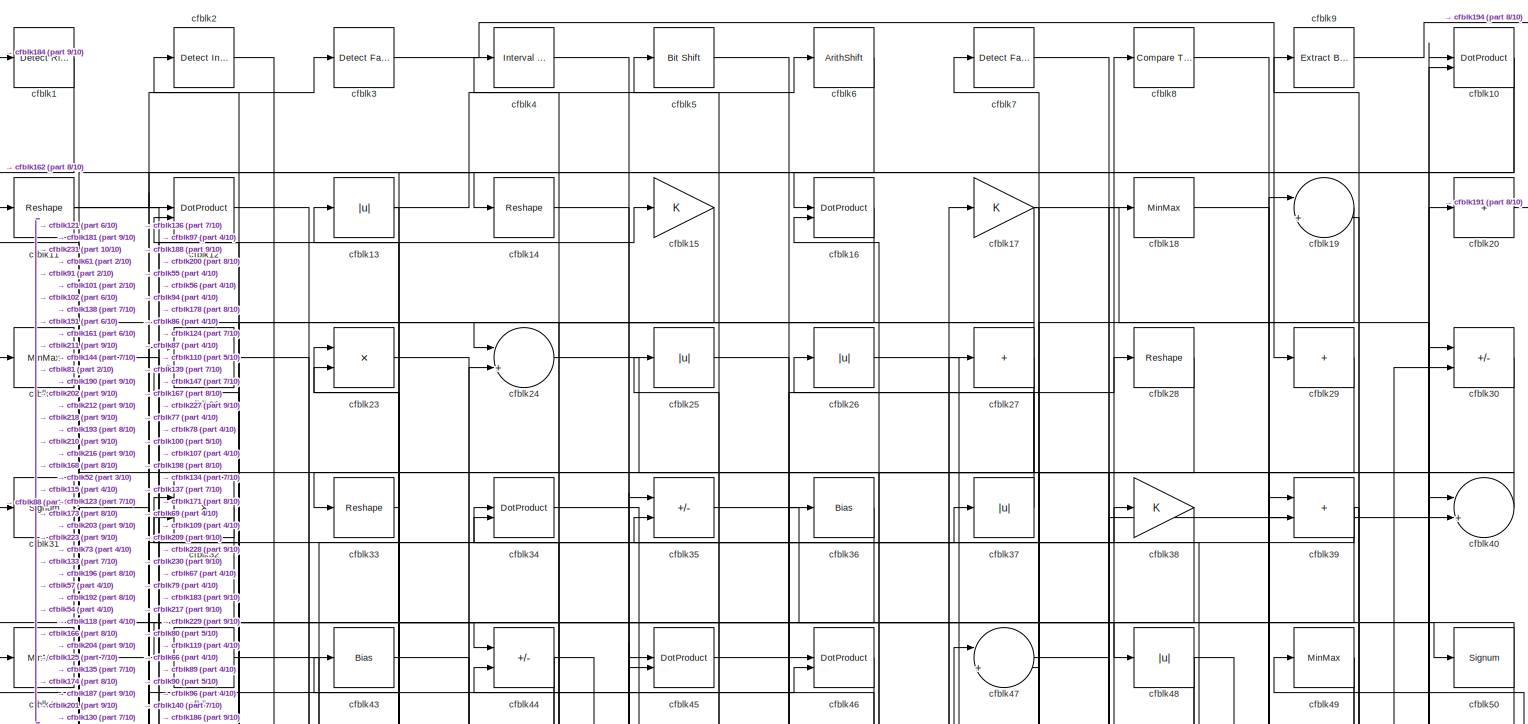
[diagram: root canvas - part 1/10, full width, top band]
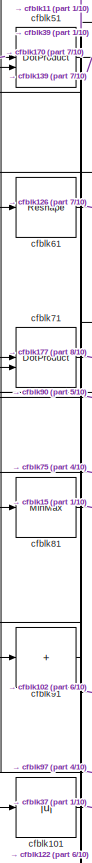
[diagram: root canvas - part 2/10, middle left region]
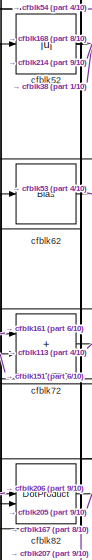
[diagram: root canvas - part 3/10, top left region]
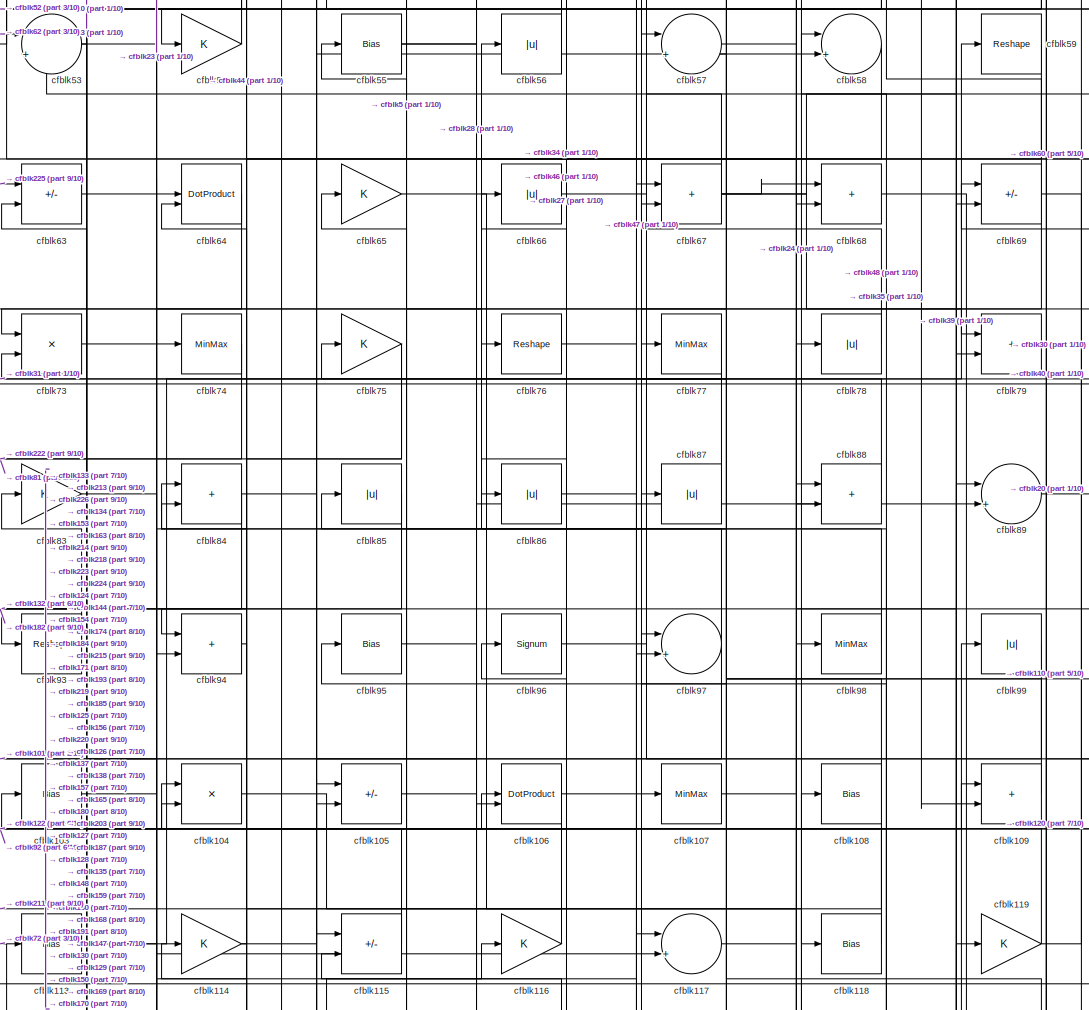
[diagram: root canvas - part 4/10, central region]
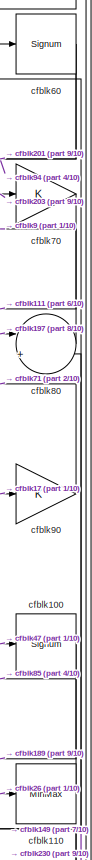
[diagram: root canvas - part 5/10, middle right region]
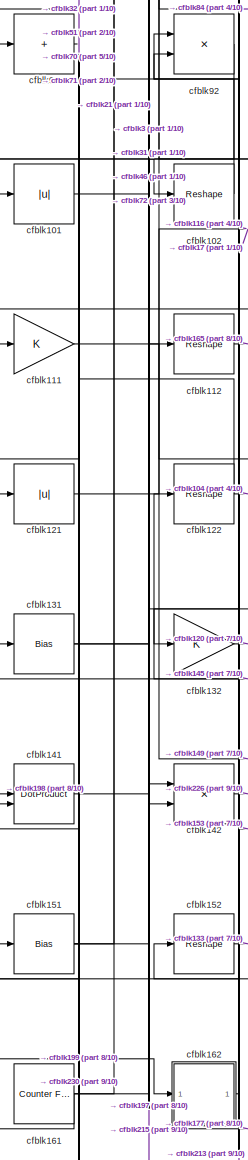
[diagram: root canvas - part 6/10, middle left region]
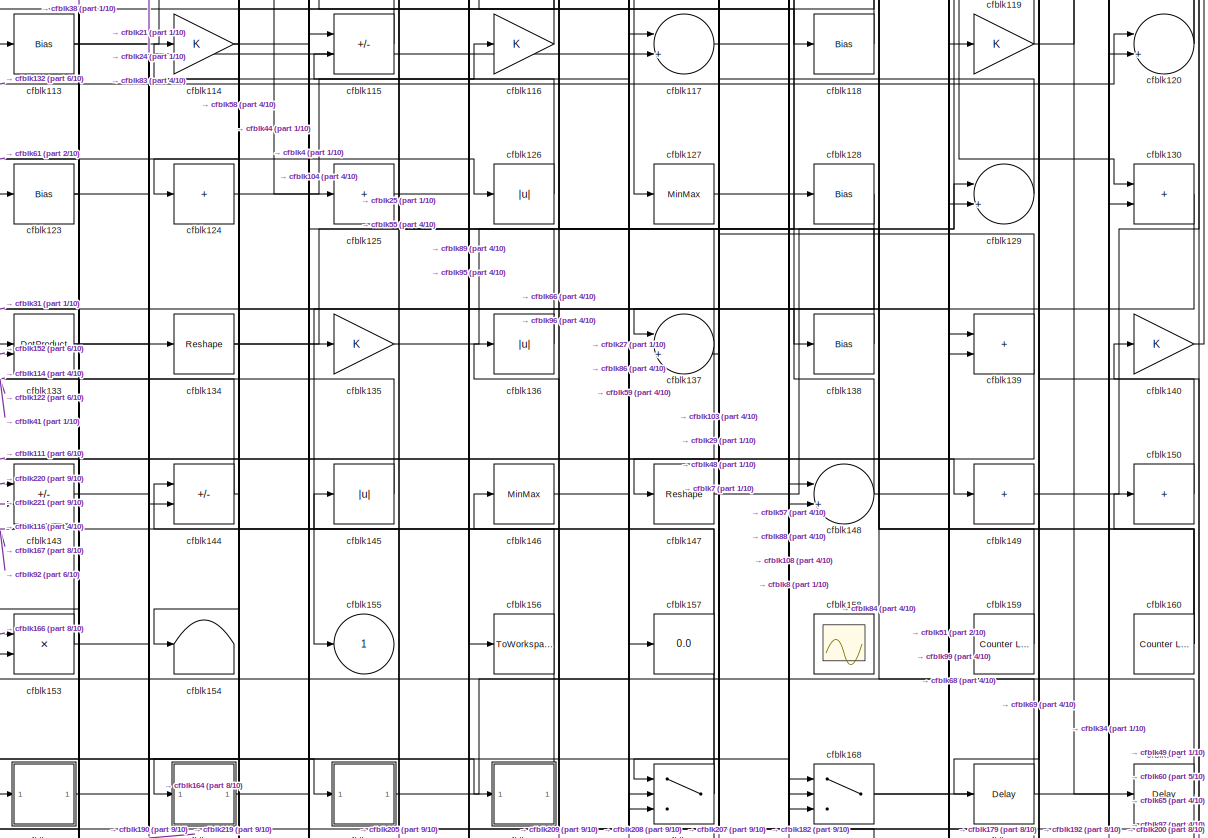
[diagram: root canvas - part 7/10, full width, middle band]
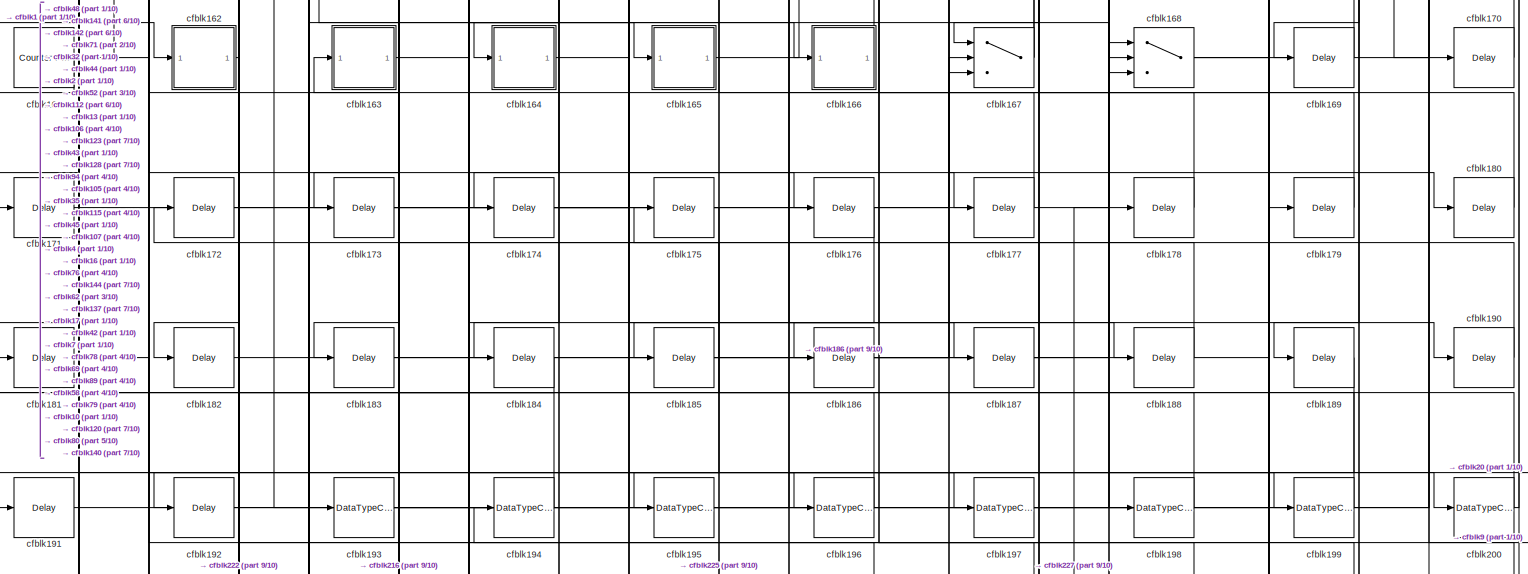
[diagram: root canvas - part 8/10, full width, bottom band]
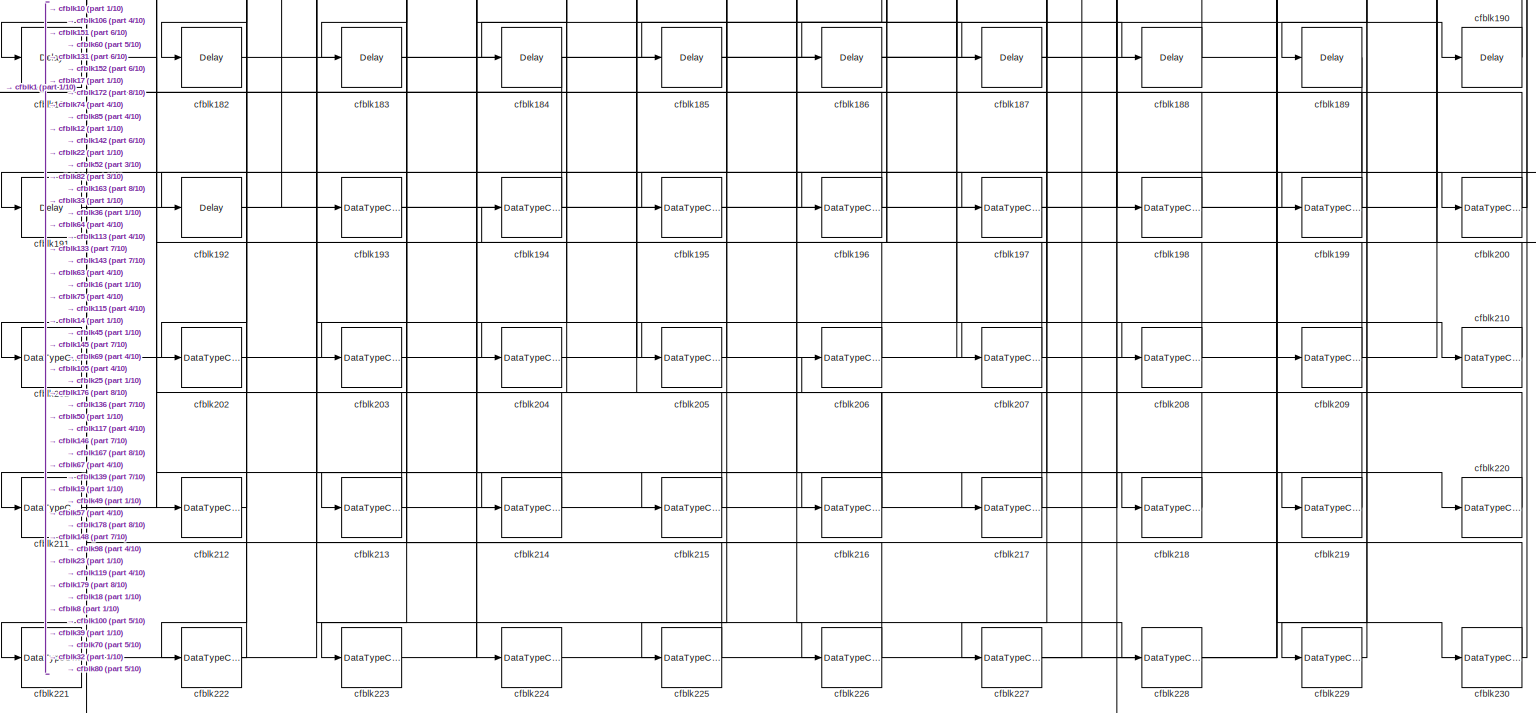
[diagram: root canvas - part 9/10, full width, bottom band]
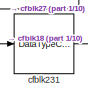
[diagram: root canvas - part 10/10, bottom left region]
MODEL slx_b0f15232308f
KIND model
CONFIG AbsTol = auto
CONFIG EnableMultiTasking = off
CONFIG FixedStep = auto
CONFIG MaxStep = auto
CONFIG MinStep = auto
CONFIG RelTol = 1e-3
CONFIG SampleTimeConstraint = Unconstrained
CONFIG SolverName = VariableStepAuto
CONFIG StartTime = 0.0
CONFIG StopTime = 10.0
BLOCK [Reference] cfblk1  REF=hdlsllib/Logic and Bit
Operations/Detect Rise
Positive
  SourceBlock = hdlsllib/Logic and Bit\nOperations/Detect Rise\nPositive
  SourceType = Detect Rise Positive
BLOCK [DotProduct] cfblk10
  OutDataTypeStr = Inherit: Inherit via internal rule
BLOCK [Signum] cfblk100
BLOCK [Abs] cfblk101
  SaturateOnIntegerOverflow = off
BLOCK [Reshape] cfblk102
BLOCK [Bias] cfblk103
  Bias = 0.0
  SaturateOnIntegerOverflow = off
BLOCK [Product] cfblk104
  Inputs = */
  RndMeth = Zero
  SaturateOnIntegerOverflow = on
BLOCK [Sum] cfblk105
  IconShape = rectangular
  Inputs = +-
BLOCK [DotProduct] cfblk106
  OutDataTypeStr = Inherit: Inherit via internal rule
BLOCK [MinMax] cfblk107
BLOCK [Bias] cfblk108
  Bias = 0.0
  SaturateOnIntegerOverflow = off
BLOCK [Sum] cfblk109
  IconShape = rectangular
BLOCK [Reshape] cfblk11
BLOCK [MinMax] cfblk110
BLOCK [Gain] cfblk111
BLOCK [Reshape] cfblk112
BLOCK [Bias] cfblk113
  Bias = 0.0
  SaturateOnIntegerOverflow = off
BLOCK [Gain] cfblk114
BLOCK [Sum] cfblk115
  IconShape = rectangular
  Inputs = +-
BLOCK [Gain] cfblk116
BLOCK [Sum] cfblk117
  Inputs = |++
BLOCK [Bias] cfblk118
  Bias = 0.0
  SaturateOnIntegerOverflow = off
BLOCK [Gain] cfblk119
BLOCK [DotProduct] cfblk12
  OutDataTypeStr = Inherit: Inherit via internal rule
BLOCK [Sum] cfblk120
  Inputs = |++
BLOCK [Abs] cfblk121
  SaturateOnIntegerOverflow = off
BLOCK [Reshape] cfblk122
BLOCK [Bias] cfblk123
  Bias = 0.0
  SaturateOnIntegerOverflow = off
BLOCK [Sum] cfblk124
  IconShape = rectangular
  Inputs = +
BLOCK [Sum] cfblk125
  IconShape = rectangular
  Inputs = +
BLOCK [Abs] cfblk126
  SaturateOnIntegerOverflow = off
BLOCK [MinMax] cfblk127
BLOCK [Bias] cfblk128
  Bias = 0.0
  SaturateOnIntegerOverflow = off
BLOCK [Sum] cfblk129
  Inputs = |++
BLOCK [Abs] cfblk13
  SaturateOnIntegerOverflow = off
BLOCK [Sum] cfblk130
  IconShape = rectangular
BLOCK [Bias] cfblk131
  Bias = 0.0
  SaturateOnIntegerOverflow = off
BLOCK [Gain] cfblk132
BLOCK [DotProduct] cfblk133
  OutDataTypeStr = Inherit: Inherit via internal rule
BLOCK [Reshape] cfblk134
BLOCK [Gain] cfblk135
BLOCK [Abs] cfblk136
  SaturateOnIntegerOverflow = off
BLOCK [Sum] cfblk137
  Inputs = |++
BLOCK [Bias] cfblk138
  Bias = 0.0
  SaturateOnIntegerOverflow = off
BLOCK [Sum] cfblk139
  IconShape = rectangular
BLOCK [Reshape] cfblk14
BLOCK [Gain] cfblk140
BLOCK [DotProduct] cfblk141
  OutDataTypeStr = Inherit: Inherit via internal rule
BLOCK [Product] cfblk142
  Inputs = */
  RndMeth = Zero
  SaturateOnIntegerOverflow = on
BLOCK [Sum] cfblk143
  IconShape = rectangular
  Inputs = +-
BLOCK [Sum] cfblk144
  IconShape = rectangular
  Inputs = +-
BLOCK [Abs] cfblk145
  SaturateOnIntegerOverflow = off
BLOCK [MinMax] cfblk146
BLOCK [Reshape] cfblk147
BLOCK [Sum] cfblk148
  Inputs = |++
BLOCK [Sum] cfblk149
  IconShape = rectangular
  Inputs = +
BLOCK [Gain] cfblk15
BLOCK [Sum] cfblk150
  IconShape = rectangular
  Inputs = +
BLOCK [Bias] cfblk151
  Bias = 0.0
  SaturateOnIntegerOverflow = off
BLOCK [Reshape] cfblk152
BLOCK [Product] cfblk153
  Inputs = */
  RndMeth = Zero
  SaturateOnIntegerOverflow = on
BLOCK [Terminator] cfblk154
BLOCK [Outport] cfblk155
  VectorParamsAs1DForOutWhenUnconnected = off
BLOCK [ToWorkspace] cfblk156
  MaxDataPoints = inf
  SampleTime = -1
  SaveFormat = Timeseries
  VariableName = simout
BLOCK [Display] cfblk157
  Decimation = 1
BLOCK [Scope] cfblk158
  Floating = on
  NumInputPorts = 1
  ScopeSpecificationString = Simulink.scopes.TimeScopeBlockCfg('CurrentConfiguration', extmgr.ConfigurationSet(extmgr.Configuration('Core','General UI',true,'FigureColor',[0.156862745098039 0.156862745098039 0.156862745098039]),extmgr.Configuration('Core','Source UI',true),extmgr.Configuration('Sources','WiredSimulink',true,'DataLoggingVariableName','ScopeData1','DataLoggingSaveFormat','StructureWithTime','DataLoggingLimitDat...<+2713ch>
BLOCK [Reference] cfblk159  REF=hdlsllib/Sources/Counter
Limited
  SourceBlock = hdlsllib/Sources/Counter\nLimited
  SourceType = Counter Limited
BLOCK [DotProduct] cfblk16
  OutDataTypeStr = Inherit: Inherit via internal rule
BLOCK [Reference] cfblk160  REF=hdlsllib/Sources/Counter
Limited
  SourceBlock = hdlsllib/Sources/Counter\nLimited
  SourceType = Counter Limited
BLOCK [Reference] cfblk161  REF=hdlsllib/Sources/Counter
Free-Running
  SourceBlock = hdlsllib/Sources/Counter\nFree-Running
  SourceType = Counter Free-Running
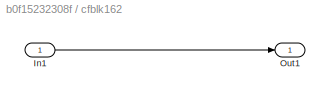
BLOCK [SubSystem] cfblk162
  LibrarySourceBlock = hdlsllib/Ports &\nSubsystems/Subsystem
BLOCK [Inport] cfblk162/In1
BLOCK [Outport] cfblk162/Out1
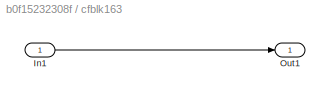
BLOCK [SubSystem] cfblk163
  LibrarySourceBlock = hdlsllib/Ports &\nSubsystems/Subsystem
BLOCK [Inport] cfblk163/In1
BLOCK [Outport] cfblk163/Out1
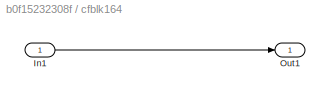
BLOCK [SubSystem] cfblk164
  LibrarySourceBlock = hdlsllib/Ports &\nSubsystems/Subsystem
BLOCK [Inport] cfblk164/In1
BLOCK [Outport] cfblk164/Out1
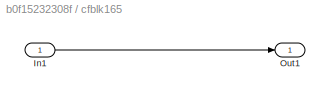
BLOCK [SubSystem] cfblk165
  LibrarySourceBlock = hdlsllib/Ports &\nSubsystems/Subsystem
BLOCK [Inport] cfblk165/In1
BLOCK [Outport] cfblk165/Out1
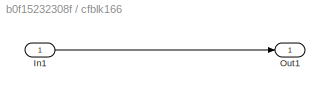
BLOCK [SubSystem] cfblk166
  LibrarySourceBlock = hdlsllib/Ports &\nSubsystems/Subsystem
BLOCK [Inport] cfblk166/In1
BLOCK [Outport] cfblk166/Out1
BLOCK [Switch] cfblk167
  InputSameDT = off
  SaturateOnIntegerOverflow = off
BLOCK [Switch] cfblk168
  InputSameDT = off
  SaturateOnIntegerOverflow = off
BLOCK [Delay] cfblk169
  InputPortMap = u0
  SampleTime = 1
BLOCK [Gain] cfblk17
BLOCK [Delay] cfblk170
  InputPortMap = u0
  SampleTime = 1
BLOCK [Delay] cfblk171
  InputPortMap = u0
  SampleTime = 1
BLOCK [Delay] cfblk172
  InputPortMap = u0
  SampleTime = 1
BLOCK [Delay] cfblk173
  InputPortMap = u0
  SampleTime = 1
BLOCK [Delay] cfblk174
  InputPortMap = u0
  SampleTime = 1
BLOCK [Delay] cfblk175
  InputPortMap = u0
  SampleTime = 1
BLOCK [Delay] cfblk176
  InputPortMap = u0
  SampleTime = 1
BLOCK [Delay] cfblk177
  InputPortMap = u0
  SampleTime = 1
BLOCK [Delay] cfblk178
  InputPortMap = u0
  SampleTime = 1
BLOCK [Delay] cfblk179
  InputPortMap = u0
  SampleTime = 1
BLOCK [MinMax] cfblk18
BLOCK [Delay] cfblk180
  InputPortMap = u0
  SampleTime = 1
BLOCK [Delay] cfblk181
  InputPortMap = u0
  SampleTime = 1
BLOCK [Delay] cfblk182
  InputPortMap = u0
  SampleTime = 1
BLOCK [Delay] cfblk183
  InputPortMap = u0
  SampleTime = 1
BLOCK [Delay] cfblk184
  InputPortMap = u0
  SampleTime = 1
BLOCK [Delay] cfblk185
  InputPortMap = u0
  SampleTime = 1
BLOCK [Delay] cfblk186
  InputPortMap = u0
  SampleTime = 1
BLOCK [Delay] cfblk187
  InputPortMap = u0
  SampleTime = 1
BLOCK [Delay] cfblk188
  InputPortMap = u0
  SampleTime = 1
BLOCK [Delay] cfblk189
  InputPortMap = u0
  SampleTime = 1
BLOCK [Sum] cfblk19
  Inputs = |++
BLOCK [Delay] cfblk190
  InputPortMap = u0
  SampleTime = 1
BLOCK [Delay] cfblk191
  InputPortMap = u0
  SampleTime = 1
BLOCK [Delay] cfblk192
  InputPortMap = u0
  SampleTime = 1
BLOCK [DataTypeConversion] cfblk193
  RndMeth = Floor
  SaturateOnIntegerOverflow = off
BLOCK [DataTypeConversion] cfblk194
  OutDataTypeStr = uint8
  RndMeth = Floor
  SaturateOnIntegerOverflow = off
BLOCK [DataTypeConversion] cfblk195
  OutDataTypeStr = uint8
  RndMeth = Floor
  SaturateOnIntegerOverflow = off
BLOCK [DataTypeConversion] cfblk196
  OutDataTypeStr = uint8
  RndMeth = Floor
  SaturateOnIntegerOverflow = off
BLOCK [DataTypeConversion] cfblk197
  OutDataTypeStr = uint8
  RndMeth = Floor
  SaturateOnIntegerOverflow = off
BLOCK [DataTypeConversion] cfblk198
  OutDataTypeStr = uint8
  RndMeth = Floor
  SaturateOnIntegerOverflow = off
BLOCK [DataTypeConversion] cfblk199
  OutDataTypeStr = uint8
  RndMeth = Floor
  SaturateOnIntegerOverflow = off
BLOCK [Reference] cfblk2  REF=simulink/Logic and Bit
Operations/Detect
Increase
  LibrarySourceBlock = hdlsllib/Logic and Bit\nOperations/Detect\nIncrease
  SourceBlock = simulink/Logic and Bit\nOperations/Detect\nIncrease
  SourceType = Detect Increase
BLOCK [Sum] cfblk20
  IconShape = rectangular
  Inputs = +
BLOCK [DataTypeConversion] cfblk200
  RndMeth = Floor
  SaturateOnIntegerOverflow = off
BLOCK [DataTypeConversion] cfblk201
  OutDataTypeStr = uint8
  RndMeth = Floor
  SaturateOnIntegerOverflow = off
BLOCK [DataTypeConversion] cfblk202
  OutDataTypeStr = uint8
  RndMeth = Floor
  SaturateOnIntegerOverflow = off
BLOCK [DataTypeConversion] cfblk203
  RndMeth = Floor
  SaturateOnIntegerOverflow = off
BLOCK [DataTypeConversion] cfblk204
  OutDataTypeStr = uint8
  RndMeth = Floor
  SaturateOnIntegerOverflow = off
BLOCK [DataTypeConversion] cfblk205
  RndMeth = Floor
  SaturateOnIntegerOverflow = off
BLOCK [DataTypeConversion] cfblk206
  OutDataTypeStr = uint8
  RndMeth = Floor
  SaturateOnIntegerOverflow = off
BLOCK [DataTypeConversion] cfblk207
  OutDataTypeStr = uint8
  RndMeth = Floor
  SaturateOnIntegerOverflow = off
BLOCK [DataTypeConversion] cfblk208
  OutDataTypeStr = uint8
  RndMeth = Floor
  SaturateOnIntegerOverflow = off
BLOCK [DataTypeConversion] cfblk209
  OutDataTypeStr = uint8
  RndMeth = Floor
  SaturateOnIntegerOverflow = off
BLOCK [MinMax] cfblk21
BLOCK [DataTypeConversion] cfblk210
  OutDataTypeStr = uint8
  RndMeth = Floor
  SaturateOnIntegerOverflow = off
BLOCK [DataTypeConversion] cfblk211
  OutDataTypeStr = uint8
  RndMeth = Floor
  SaturateOnIntegerOverflow = off
BLOCK [DataTypeConversion] cfblk212
  OutDataTypeStr = uint8
  RndMeth = Floor
  SaturateOnIntegerOverflow = off
BLOCK [DataTypeConversion] cfblk213
  RndMeth = Floor
  SaturateOnIntegerOverflow = off
BLOCK [DataTypeConversion] cfblk214
  OutDataTypeStr = uint8
  RndMeth = Floor
  SaturateOnIntegerOverflow = off
BLOCK [DataTypeConversion] cfblk215
  OutDataTypeStr = uint8
  RndMeth = Floor
  SaturateOnIntegerOverflow = off
BLOCK [DataTypeConversion] cfblk216
  RndMeth = Floor
  SaturateOnIntegerOverflow = off
BLOCK [DataTypeConversion] cfblk217
  OutDataTypeStr = uint8
  RndMeth = Floor
  SaturateOnIntegerOverflow = off
BLOCK [DataTypeConversion] cfblk218
  OutDataTypeStr = uint8
  RndMeth = Floor
  SaturateOnIntegerOverflow = off
BLOCK [DataTypeConversion] cfblk219
  OutDataTypeStr = uint8
  RndMeth = Floor
  SaturateOnIntegerOverflow = off
BLOCK [Sum] cfblk22
  IconShape = rectangular
  Inputs = +-
BLOCK [DataTypeConversion] cfblk220
  OutDataTypeStr = uint8
  RndMeth = Floor
  SaturateOnIntegerOverflow = off
BLOCK [DataTypeConversion] cfblk221
  OutDataTypeStr = uint8
  RndMeth = Floor
  SaturateOnIntegerOverflow = off
BLOCK [DataTypeConversion] cfblk222
  OutDataTypeStr = uint8
  RndMeth = Floor
  SaturateOnIntegerOverflow = off
BLOCK [DataTypeConversion] cfblk223
  OutDataTypeStr = uint8
  RndMeth = Floor
  SaturateOnIntegerOverflow = off
BLOCK [DataTypeConversion] cfblk224
  OutDataTypeStr = uint8
  RndMeth = Floor
  SaturateOnIntegerOverflow = off
BLOCK [DataTypeConversion] cfblk225
  OutDataTypeStr = uint8
  RndMeth = Floor
  SaturateOnIntegerOverflow = off
BLOCK [DataTypeConversion] cfblk226
  OutDataTypeStr = uint8
  RndMeth = Floor
  SaturateOnIntegerOverflow = off
BLOCK [DataTypeConversion] cfblk227
  RndMeth = Floor
  SaturateOnIntegerOverflow = off
BLOCK [DataTypeConversion] cfblk228
  OutDataTypeStr = uint8
  RndMeth = Floor
  SaturateOnIntegerOverflow = off
BLOCK [DataTypeConversion] cfblk229
  OutDataTypeStr = uint8
  RndMeth = Floor
  SaturateOnIntegerOverflow = off
BLOCK [Product] cfblk23
  Inputs = */
  RndMeth = Zero
  SaturateOnIntegerOverflow = on
BLOCK [DataTypeConversion] cfblk230
  RndMeth = Floor
  SaturateOnIntegerOverflow = off
BLOCK [DataTypeConversion] cfblk231
  OutDataTypeStr = uint8
  RndMeth = Floor
  SaturateOnIntegerOverflow = off
BLOCK [Sum] cfblk24
  Inputs = |++
BLOCK [Abs] cfblk25
  SaturateOnIntegerOverflow = off
BLOCK [Abs] cfblk26
  SaturateOnIntegerOverflow = off
BLOCK [Sum] cfblk27
  IconShape = rectangular
  Inputs = +
BLOCK [Reshape] cfblk28
BLOCK [Sum] cfblk29
  IconShape = rectangular
  Inputs = +
BLOCK [Reference] cfblk3  REF=hdlsllib/Logic and Bit
Operations/Detect Fall
Negative
  SourceBlock = hdlsllib/Logic and Bit\nOperations/Detect Fall\nNegative
  SourceType = Detect Fall Negative
BLOCK [Sum] cfblk30
  IconShape = rectangular
  Inputs = +-
BLOCK [Signum] cfblk31
BLOCK [Product] cfblk32
  Inputs = */
  RndMeth = Zero
  SaturateOnIntegerOverflow = on
BLOCK [Reshape] cfblk33
BLOCK [DotProduct] cfblk34
  OutDataTypeStr = Inherit: Inherit via internal rule
BLOCK [Sum] cfblk35
  IconShape = rectangular
  Inputs = +-
BLOCK [Bias] cfblk36
  Bias = 0.0
  SaturateOnIntegerOverflow = off
BLOCK [Abs] cfblk37
  SaturateOnIntegerOverflow = off
BLOCK [Gain] cfblk38
BLOCK [Sum] cfblk39
  IconShape = rectangular
BLOCK [Reference] cfblk4  REF=hdlsllib/Logic and Bit
Operations/Interval Test
  SourceBlock = hdlsllib/Logic and Bit\nOperations/Interval Test
  SourceType = Interval Test
BLOCK [Sum] cfblk40
  Inputs = |++
BLOCK [MinMax] cfblk41
BLOCK [Sum] cfblk42
  IconShape = rectangular
  Inputs = +
BLOCK [Bias] cfblk43
  Bias = 0.0
  SaturateOnIntegerOverflow = off
BLOCK [Sum] cfblk44
  IconShape = rectangular
  Inputs = +-
BLOCK [DotProduct] cfblk45
  OutDataTypeStr = Inherit: Inherit via internal rule
BLOCK [DotProduct] cfblk46
  OutDataTypeStr = Inherit: Inherit via internal rule
BLOCK [Sum] cfblk47
  Inputs = |++
BLOCK [Abs] cfblk48
  SaturateOnIntegerOverflow = off
BLOCK [MinMax] cfblk49
BLOCK [Reference] cfblk5  REF=hdlsllib/Logic and Bit
Operations/Bit Shift
  SourceBlock = hdlsllib/Logic and Bit\nOperations/Bit Shift
  SourceType = Bit Shift
BLOCK [Signum] cfblk50
BLOCK [DotProduct] cfblk51
  OutDataTypeStr = Inherit: Inherit via internal rule
BLOCK [Abs] cfblk52
  SaturateOnIntegerOverflow = off
BLOCK [Sum] cfblk53
  Inputs = |++
BLOCK [Gain] cfblk54
BLOCK [Bias] cfblk55
  Bias = 0.0
  SaturateOnIntegerOverflow = off
BLOCK [Abs] cfblk56
  SaturateOnIntegerOverflow = off
BLOCK [Sum] cfblk57
  Inputs = |++
BLOCK [Sum] cfblk58
  Inputs = |++
BLOCK [Reshape] cfblk59
BLOCK [ArithShift] cfblk6
  BitShiftNumber = 8
  InputPortMap = u0
BLOCK [Signum] cfblk60
BLOCK [Reshape] cfblk61
BLOCK [Bias] cfblk62
  Bias = 0.0
  SaturateOnIntegerOverflow = off
BLOCK [Sum] cfblk63
  IconShape = rectangular
  Inputs = +-
BLOCK [DotProduct] cfblk64
  OutDataTypeStr = Inherit: Inherit via internal rule
BLOCK [Gain] cfblk65
BLOCK [Abs] cfblk66
  SaturateOnIntegerOverflow = off
BLOCK [Sum] cfblk67
  IconShape = rectangular
BLOCK [Sum] cfblk68
  IconShape = rectangular
BLOCK [Sum] cfblk69
  IconShape = rectangular
  Inputs = +-
BLOCK [Reference] cfblk7  REF=hdlsllib/Logic and Bit
Operations/Detect Fall
Negative
  SourceBlock = hdlsllib/Logic and Bit\nOperations/Detect Fall\nNegative
  SourceType = Detect Fall Negative
BLOCK [Gain] cfblk70
BLOCK [DotProduct] cfblk71
  OutDataTypeStr = Inherit: Inherit via internal rule
BLOCK [Sum] cfblk72
  IconShape = rectangular
BLOCK [Product] cfblk73
  Inputs = */
  RndMeth = Zero
  SaturateOnIntegerOverflow = on
BLOCK [MinMax] cfblk74
BLOCK [Gain] cfblk75
BLOCK [Reshape] cfblk76
BLOCK [MinMax] cfblk77
BLOCK [Abs] cfblk78
  SaturateOnIntegerOverflow = off
BLOCK [Sum] cfblk79
  IconShape = rectangular
BLOCK [Reference] cfblk8  REF=hdlsllib/Logic and Bit
Operations/Compare
To Constant
  SourceBlock = hdlsllib/Logic and Bit\nOperations/Compare\nTo Constant
  SourceType = Compare To Constant
BLOCK [Sum] cfblk80
  Inputs = |++
BLOCK [MinMax] cfblk81
BLOCK [DotProduct] cfblk82
  OutDataTypeStr = Inherit: Inherit via internal rule
BLOCK [Gain] cfblk83
BLOCK [Sum] cfblk84
  IconShape = rectangular
BLOCK [Abs] cfblk85
  SaturateOnIntegerOverflow = off
BLOCK [Abs] cfblk86
  SaturateOnIntegerOverflow = off
BLOCK [Abs] cfblk87
  SaturateOnIntegerOverflow = off
BLOCK [Sum] cfblk88
  IconShape = rectangular
BLOCK [Sum] cfblk89
  Inputs = |++
BLOCK [Reference] cfblk9  REF=simulink/Logic and Bit
Operations/Extract Bits
  LibrarySourceBlock = hdlsllib/Logic and Bit\nOperations/Extract Bits
  SourceBlock = simulink/Logic and Bit\nOperations/Extract Bits
  SourceType = Extract Bits
BLOCK [Gain] cfblk90
BLOCK [Sum] cfblk91
  IconShape = rectangular
  Inputs = +
BLOCK [Product] cfblk92
  Inputs = */
  RndMeth = Zero
  SaturateOnIntegerOverflow = on
BLOCK [Reshape] cfblk93
BLOCK [Sum] cfblk94
  IconShape = rectangular
BLOCK [Bias] cfblk95
  Bias = 0.0
  SaturateOnIntegerOverflow = off
BLOCK [Signum] cfblk96
BLOCK [Sum] cfblk97
  Inputs = |++
BLOCK [MinMax] cfblk98
BLOCK [Abs] cfblk99
  SaturateOnIntegerOverflow = off
LINE cfblk100:1 -> cfblk189:1
LINE cfblk101:1 -> cfblk37:1
LINE cfblk102:1 -> cfblk51:2
LINE cfblk103:1 -> cfblk87:1
LINE cfblk104:1 -> cfblk128:1
LINE cfblk105:1 -> cfblk220:1
NET cfblk106:1 -> cfblk211:1, cfblk97:2
LINE cfblk107:1 -> cfblk40:2
NET cfblk108:1 -> cfblk154:1, cfblk67:2
LINE cfblk109:1 -> cfblk75:1
NET cfblk10:1 -> cfblk181:1, cfblk73:1
LINE cfblk110:1 -> cfblk85:1
LINE cfblk111:1 -> cfblk149:1
LINE cfblk112:1 -> cfblk165:1
NET cfblk113:1 -> cfblk218:1, cfblk59:1
NET cfblk114:1 -> cfblk58:2, cfblk84:2
LINE cfblk115:1 -> cfblk23:1
LINE cfblk116:1 -> cfblk92:1
LINE cfblk117:1 -> cfblk109:1
LINE cfblk118:1 -> cfblk44:2
NET cfblk119:1 -> cfblk13:1, cfblk30:2
NET cfblk11:1 -> cfblk14:1, cfblk50:1
NET cfblk120:1 -> cfblk65:1, cfblk97:1
LINE cfblk121:1 -> cfblk17:1
NET cfblk122:1 -> cfblk104:2, cfblk71:2
NET cfblk123:1 -> cfblk153:1, cfblk166:1
LINE cfblk124:1 -> cfblk27:1
LINE cfblk125:1 -> cfblk89:2
LINE cfblk126:1 -> cfblk55:1
LINE cfblk127:1 -> cfblk139:2
LINE cfblk128:1 -> cfblk164:1
LINE cfblk129:1 -> cfblk103:1
LINE cfblk12:1 -> cfblk216:1
LINE cfblk130:1 -> cfblk155:1
NET cfblk131:1 -> cfblk112:1, cfblk215:1
LINE cfblk132:1 -> cfblk120:1
NET cfblk133:1 -> cfblk190:1, cfblk24:2
NET cfblk134:1 -> cfblk129:1, cfblk8:1
LINE cfblk135:1 -> cfblk88:1
LINE cfblk136:1 -> cfblk25:1
NET cfblk137:1 -> cfblk153:2, cfblk96:1
LINE cfblk138:1 -> cfblk66:1
NET cfblk139:1 -> cfblk207:1, cfblk7:1
NET cfblk13:1 -> cfblk173:1, cfblk6:1
LINE cfblk140:1 -> cfblk49:1
LINE cfblk141:1 -> cfblk197:1
LINE cfblk142:1 -> cfblk226:1
LINE cfblk143:1 -> cfblk219:1
NET cfblk144:1 -> cfblk114:1, cfblk41:1
LINE cfblk145:1 -> cfblk122:1
LINE cfblk146:1 -> cfblk208:1
LINE cfblk147:1 -> cfblk99:1
NET cfblk148:1 -> cfblk108:1, cfblk129:2
LINE cfblk149:1 -> cfblk60:1
LINE cfblk14:1 -> cfblk187:1
LINE cfblk150:1 -> cfblk69:1
NET cfblk151:1 -> cfblk131:1, cfblk3:1, cfblk72:2
LINE cfblk152:1 -> cfblk133:2
NET cfblk153:1 -> cfblk116:1, cfblk92:2
LINE cfblk159:1 -> cfblk104:1
LINE cfblk15:1 -> cfblk61:1
NET cfblk160:1 -> cfblk150:1, cfblk84:1, cfblk95:1
NET cfblk161:1 -> cfblk21:1, cfblk46:2, cfblk72:1
LINE cfblk162/In1:1 -> cfblk162/Out1:1
LINE cfblk162:1 -> cfblk32:1
LINE cfblk163/In1:1 -> cfblk163/Out1:1
LINE cfblk163:1 -> cfblk106:1
LINE cfblk164/In1:1 -> cfblk164/Out1:1
LINE cfblk164:1 -> cfblk176:1
LINE cfblk165/In1:1 -> cfblk165/Out1:1
LINE cfblk165:1 -> cfblk107:1
LINE cfblk166/In1:1 -> cfblk166/Out1:1
LINE cfblk166:1 -> cfblk4:1
NET cfblk167:1 -> cfblk144:1, cfblk62:1
NET cfblk168:1 -> cfblk10:2, cfblk69:2
LINE cfblk169:1 -> cfblk58:1
LINE cfblk16:1 -> cfblk204:1
LINE cfblk170:1 -> cfblk51:1
LINE cfblk171:1 -> cfblk105:2
LINE cfblk172:1 -> cfblk167:2
LINE cfblk173:1 -> cfblk168:1
LINE cfblk174:1 -> cfblk35:1
LINE cfblk175:1 -> cfblk195:1
LINE cfblk176:1 -> cfblk225:1
LINE cfblk177:1 -> cfblk142:1
LINE cfblk178:1 -> cfblk16:2
LINE cfblk179:1 -> cfblk137:2
NET cfblk17:1 -> cfblk167:1, cfblk202:1, cfblk90:1
LINE cfblk180:1 -> cfblk115:2
LINE cfblk181:1 -> cfblk212:1
LINE cfblk182:1 -> cfblk148:2
LINE cfblk183:1 -> cfblk39:2
LINE cfblk184:1 -> cfblk1:1
LINE cfblk185:1 -> cfblk67:1
LINE cfblk186:1 -> cfblk167:3
LINE cfblk187:1 -> cfblk57:2
LINE cfblk188:1 -> cfblk23:2
LINE cfblk189:1 -> cfblk221:1
LINE cfblk18:1 -> cfblk230:1
LINE cfblk190:1 -> cfblk32:2
LINE cfblk191:1 -> cfblk89:1
LINE cfblk192:1 -> cfblk120:2
NET cfblk193:1 -> cfblk105:1, cfblk78:1
LINE cfblk194:1 -> cfblk2:1
LINE cfblk195:1 -> cfblk199:1
LINE cfblk196:1 -> cfblk175:1
LINE cfblk197:1 -> cfblk80:1
LINE cfblk198:1 -> cfblk141:1
LINE cfblk199:1 -> cfblk141:2
LINE cfblk19:1 -> cfblk227:1
LINE cfblk1:1 -> cfblk162:1
NET cfblk200:1 -> cfblk140:1, cfblk43:1
LINE cfblk201:1 -> cfblk45:1
LINE cfblk202:1 -> cfblk45:2
NET cfblk203:1 -> cfblk117:1, cfblk70:1
LINE cfblk204:1 -> cfblk36:1
NET cfblk205:1 -> cfblk145:1, cfblk228:1
LINE cfblk206:1 -> cfblk82:1
LINE cfblk207:1 -> cfblk82:2
LINE cfblk208:1 -> cfblk136:1
LINE cfblk209:1 -> cfblk146:1
LINE cfblk20:1 -> cfblk191:1
LINE cfblk210:1 -> cfblk10:1
LINE cfblk211:1 -> cfblk22:1
LINE cfblk212:1 -> cfblk22:2
NET cfblk213:1 -> cfblk152:1, cfblk98:1
LINE cfblk214:1 -> cfblk64:1
LINE cfblk215:1 -> cfblk64:2
NET cfblk216:1 -> cfblk163:1, cfblk206:1
LINE cfblk217:1 -> cfblk12:1
LINE cfblk218:1 -> cfblk12:2
LINE cfblk219:1 -> cfblk115:1
LINE cfblk21:1 -> cfblk144:2
LINE cfblk220:1 -> cfblk143:1
LINE cfblk221:1 -> cfblk143:2
LINE cfblk222:1 -> cfblk172:1
LINE cfblk223:1 -> cfblk74:1
LINE cfblk224:1 -> cfblk119:1
LINE cfblk225:1 -> cfblk63:1
LINE cfblk226:1 -> cfblk63:2
NET cfblk227:1 -> cfblk178:1, cfblk179:1
LINE cfblk228:1 -> cfblk19:1
LINE cfblk229:1 -> cfblk19:2
LINE cfblk22:1 -> cfblk210:1
NET cfblk230:1 -> cfblk151:1, cfblk80:2
LINE cfblk231:1 -> cfblk18:1
LINE cfblk23:1 -> cfblk57:1
LINE cfblk24:1 -> cfblk88:2
LINE cfblk25:1 -> cfblk188:1
LINE cfblk26:1 -> cfblk110:1
NET cfblk27:1 -> cfblk231:1, cfblk24:1, cfblk86:1
LINE cfblk28:1 -> cfblk77:1
LINE cfblk29:1 -> cfblk147:1
LINE cfblk2:1 -> cfblk193:1
LINE cfblk30:1 -> cfblk79:2
NET cfblk31:1 -> cfblk102:1, cfblk138:1
LINE cfblk32:1 -> cfblk121:1
LINE cfblk33:1 -> cfblk223:1
LINE cfblk34:1 -> cfblk130:2
LINE cfblk35:1 -> cfblk48:1
LINE cfblk36:1 -> cfblk203:1
LINE cfblk37:1 -> cfblk26:1
LINE cfblk38:1 -> cfblk123:1
NET cfblk39:1 -> cfblk229:1, cfblk34:2, cfblk91:1
LINE cfblk3:1 -> cfblk29:1
LINE cfblk40:1 -> cfblk33:1
LINE cfblk41:1 -> cfblk44:1
LINE cfblk42:1 -> cfblk168:2
LINE cfblk43:1 -> cfblk196:1
NET cfblk44:1 -> cfblk125:1, cfblk192:1, cfblk54:1
LINE cfblk45:1 -> cfblk200:1
LINE cfblk46:1 -> cfblk94:2
LINE cfblk47:1 -> cfblk100:1
NET cfblk48:1 -> cfblk109:2, cfblk137:1, cfblk171:1
NET cfblk49:1 -> cfblk183:1, cfblk217:1
LINE cfblk4:1 -> cfblk135:1
NET cfblk50:1 -> cfblk186:1, cfblk42:1
LINE cfblk51:1 -> cfblk139:1
NET cfblk52:1 -> cfblk168:3, cfblk214:1, cfblk38:1
NET cfblk53:1 -> cfblk117:2, cfblk93:1
LINE cfblk54:1 -> cfblk52:1
NET cfblk55:1 -> cfblk28:1, cfblk68:2
LINE cfblk56:1 -> cfblk34:1
LINE cfblk57:1 -> cfblk148:1
LINE cfblk58:1 -> cfblk124:1
LINE cfblk59:1 -> cfblk127:1
LINE cfblk5:1 -> cfblk46:1
NET cfblk60:1 -> cfblk201:1, cfblk94:1
LINE cfblk61:1 -> cfblk126:1
LINE cfblk62:1 -> cfblk53:1
LINE cfblk63:1 -> cfblk224:1
LINE cfblk64:1 -> cfblk213:1
LINE cfblk65:1 -> cfblk118:1
LINE cfblk66:1 -> cfblk30:1
NET cfblk67:1 -> cfblk39:1, cfblk53:2, cfblk68:1, cfblk79:1
LINE cfblk68:1 -> cfblk130:1
NET cfblk69:1 -> cfblk170:1, cfblk185:1, cfblk35:2
LINE cfblk6:1 -> cfblk16:1
LINE cfblk70:1 -> cfblk111:1
LINE cfblk71:1 -> cfblk177:1
LINE cfblk72:1 -> cfblk113:1
LINE cfblk73:1 -> cfblk76:1
LINE cfblk74:1 -> cfblk222:1
NET cfblk75:1 -> cfblk184:1, cfblk81:1
LINE cfblk76:1 -> cfblk180:1
LINE cfblk77:1 -> cfblk73:2
LINE cfblk78:1 -> cfblk47:2
LINE cfblk79:1 -> cfblk169:1
LINE cfblk7:1 -> cfblk198:1
LINE cfblk80:1 -> cfblk9:1
LINE cfblk81:1 -> cfblk15:1
LINE cfblk82:1 -> cfblk205:1
LINE cfblk83:1 -> cfblk134:1
NET cfblk84:1 -> cfblk106:2, cfblk132:1
LINE cfblk85:1 -> cfblk182:1
LINE cfblk86:1 -> cfblk157:1
LINE cfblk87:1 -> cfblk47:1
LINE cfblk88:1 -> cfblk31:1
LINE cfblk89:1 -> cfblk20:1
LINE cfblk8:1 -> cfblk209:1
LINE cfblk90:1 -> cfblk71:1
LINE cfblk91:1 -> cfblk11:1
LINE cfblk92:1 -> cfblk142:2
LINE cfblk93:1 -> cfblk83:1
LINE cfblk94:1 -> cfblk174:1
LINE cfblk95:1 -> cfblk156:1
LINE cfblk96:1 -> cfblk40:1
NET cfblk97:1 -> cfblk101:1, cfblk5:1
LINE cfblk98:1 -> cfblk56:1
LINE cfblk99:1 -> cfblk133:1
LINE cfblk9:1 -> cfblk194:1
note: NET lines group one-source signal fan-out (src -> all destinations, sorted); 1:1 wires keep LINE
